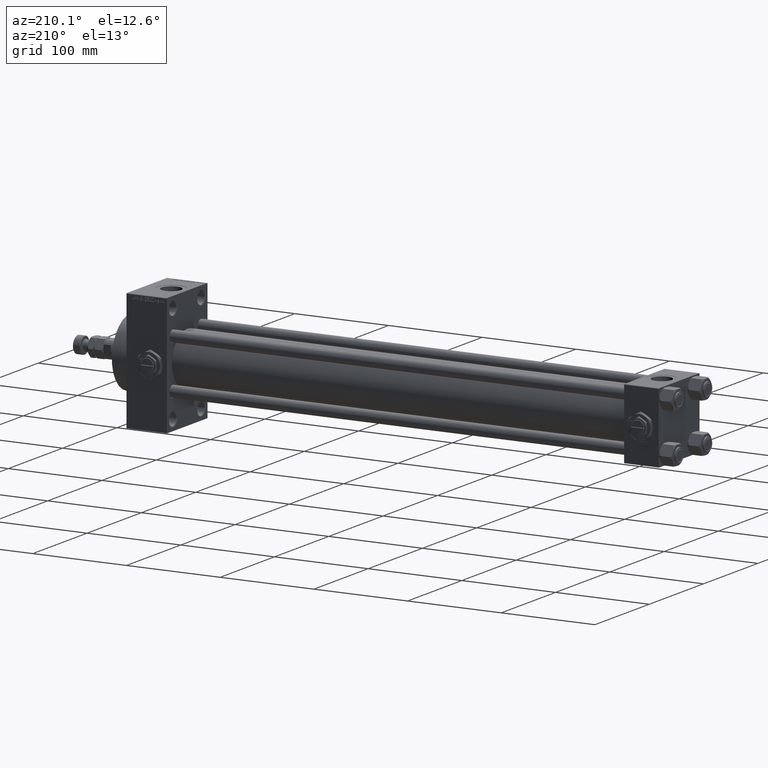
[diagram: clean part render]
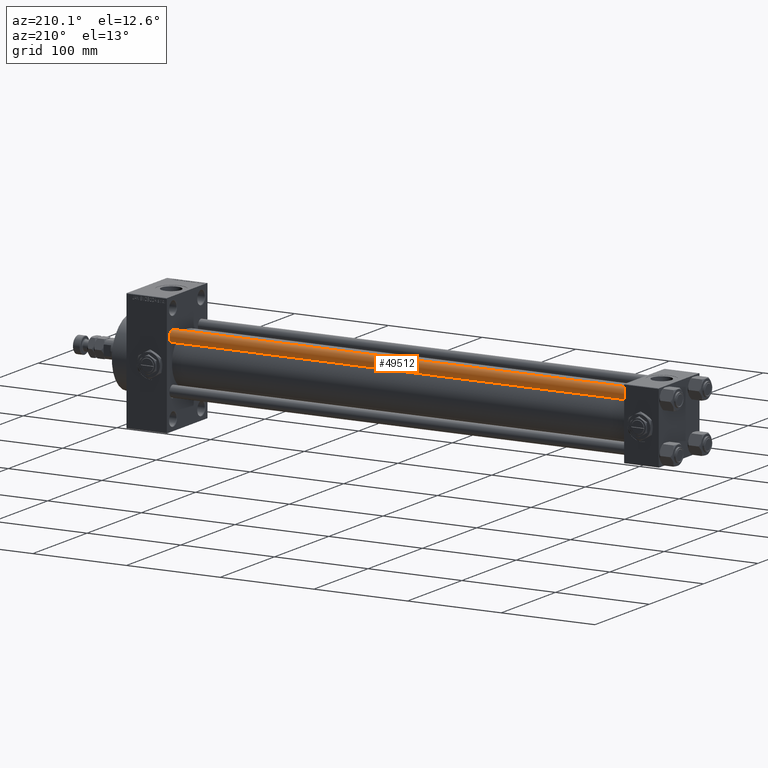
[diagram: same view with one face highlighted and labeled with its STEP entity id]
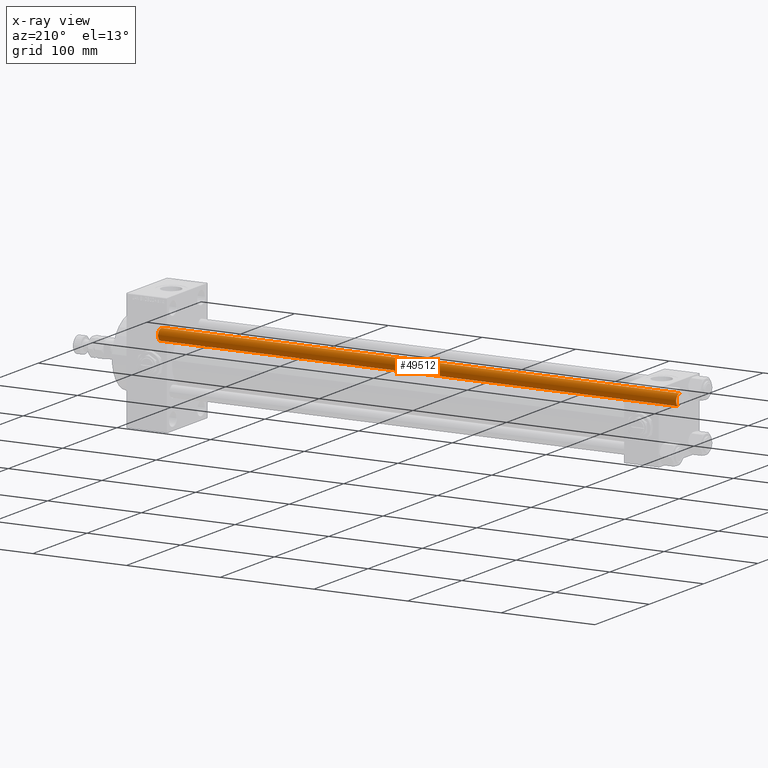
[diagram: x-ray of the same camera — body ghosted, the highlighted face saturated]
A machine part, auxiliary view. The second image highlights one B-rep face of the part: STEP entity #49512.
The next image is the same camera in x-ray: the body ghosted, the highlighted face saturated — about 0% of this face is hidden behind the body in this view.
In plain terms, the highlighted cylindrical surface (edge-blend (fillet) strip) has radius 6 mm, axis along (-1, -0, 0).
Its self-contained STEP definition (entity closure, byte-faithful):
#314 = VERTEX_POINT ( 'NONE', #26113 ) ;
#408 = EDGE_CURVE ( 'NONE', #1310, #314, #19141, .T. ) ;
#713 = CARTESIAN_POINT ( 'NONE',  ( 0.000000000000000000, 0.000000000000000000, 0.5000000000000559552 ) ) ;
#1310 = VERTEX_POINT ( 'NONE', #32492 ) ;
#3692 = CARTESIAN_POINT ( 'NONE',  ( 6.000000000000000888, 7.347880794884120722E-16, 554.0000000000000000 ) ) ;
#4090 = EDGE_CURVE ( 'NONE', #44238, #21502, #38348, .T. ) ;
#4495 = ORIENTED_EDGE ( 'NONE', *, *, #4090, .F. ) ;
#9312 = ORIENTED_EDGE ( 'NONE', *, *, #49591, .T. ) ;
#12061 = DIRECTION ( 'NONE',  ( 1.000000000000000000, 0.000000000000000000, 0.000000000000000000 ) ) ;
#14172 = CARTESIAN_POINT ( 'NONE',  ( -6.000000000000000888, 0.000000000000000000, 554.0000000000000000 ) ) ;
#14792 = CARTESIAN_POINT ( 'NONE',  ( 0.000000000000000000, 0.000000000000000000, 554.0000000000000000 ) ) ;
#16048 = DIRECTION ( 'NONE',  ( 1.000000000000000000, 0.000000000000000000, 0.000000000000000000 ) ) ;
#19141 = LINE ( 'NONE', #3692, #24119 ) ;
#21502 = VERTEX_POINT ( 'NONE', #40673 ) ;
#21994 = AXIS2_PLACEMENT_3D ( 'NONE', #713, #23665, #12061 ) ;
#22679 = AXIS2_PLACEMENT_3D ( 'NONE', #27899, #24292, #16048 ) ;
#22779 = FACE_OUTER_BOUND ( 'NONE', #44773, .T. ) ;
#23665 = DIRECTION ( 'NONE',  ( -0.000000000000000000, -0.000000000000000000, 1.000000000000000000 ) ) ;
#24119 = VECTOR ( 'NONE', #46445, 1000.000000000000000 ) ;
#24292 = DIRECTION ( 'NONE',  ( 0.000000000000000000, 0.000000000000000000, -1.000000000000000000 ) ) ;
#24979 = CARTESIAN_POINT ( 'NONE',  ( -6.000000000000000888, 0.000000000000000000, 553.5000000000001137 ) ) ;
#26113 = CARTESIAN_POINT ( 'NONE',  ( 6.000000000000000888, 7.347880794884120722E-16, 0.5000000000000559552 ) ) ;
#26612 = DIRECTION ( 'NONE',  ( -0.000000000000000000, -0.000000000000000000, -1.000000000000000000 ) ) ;
#27899 = CARTESIAN_POINT ( 'NONE',  ( 0.000000000000000000, 0.000000000000000000, 553.5000000000001137 ) ) ;
#29849 = DIRECTION ( 'NONE',  ( -0.000000000000000000, -0.000000000000000000, -1.000000000000000000 ) ) ;
#30038 = AXIS2_PLACEMENT_3D ( 'NONE', #14792, #26612, #30470 ) ;
#30470 = DIRECTION ( 'NONE',  ( -1.000000000000000000, 0.000000000000000000, 0.000000000000000000 ) ) ;
#31623 = VECTOR ( 'NONE', #29849, 1000.000000000000000 ) ;
#32492 = CARTESIAN_POINT ( 'NONE',  ( 6.000000000000000888, 7.347880794884120722E-16, 553.5000000000001137 ) ) ;
#33470 = CIRCLE ( 'NONE', #21994, 6.000000000000000888 ) ;
#34345 = CYLINDRICAL_SURFACE ( 'NONE', #30038, 6.000000000000000888 ) ;
#35058 = EDGE_CURVE ( 'NONE', #314, #21502, #33470, .T. ) ;
#38348 = LINE ( 'NONE', #14172, #31623 ) ;
#40673 = CARTESIAN_POINT ( 'NONE',  ( -6.000000000000000888, 0.000000000000000000, 0.5000000000000559552 ) ) ;
#40758 = CIRCLE ( 'NONE', #22679, 6.000000000000000888 ) ;
#44238 = VERTEX_POINT ( 'NONE', #24979 ) ;
#44513 = ORIENTED_EDGE ( 'NONE', *, *, #35058, .T. ) ;
#44773 = EDGE_LOOP ( 'NONE', ( #9312, #50091, #44513, #4495 ) ) ;
#46445 = DIRECTION ( 'NONE',  ( -0.000000000000000000, -0.000000000000000000, -1.000000000000000000 ) ) ;
#49512 = ADVANCED_FACE ( 'NONE', ( #22779 ), #34345, .T. ) ;
#49591 = EDGE_CURVE ( 'NONE', #44238, #1310, #40758, .T. ) ;
#50091 = ORIENTED_EDGE ( 'NONE', *, *, #408, .T. ) ;